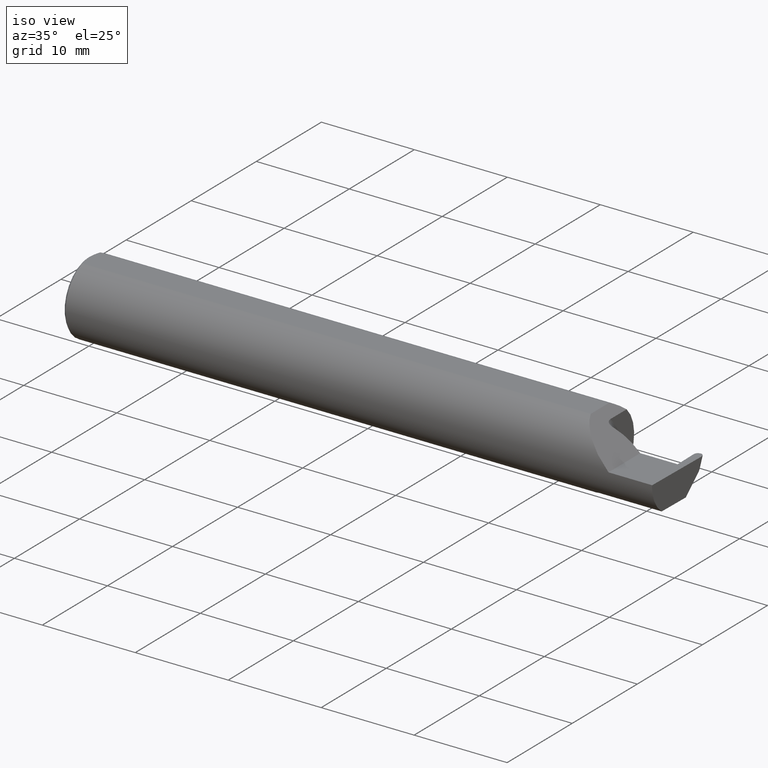
[diagram: clean part render]
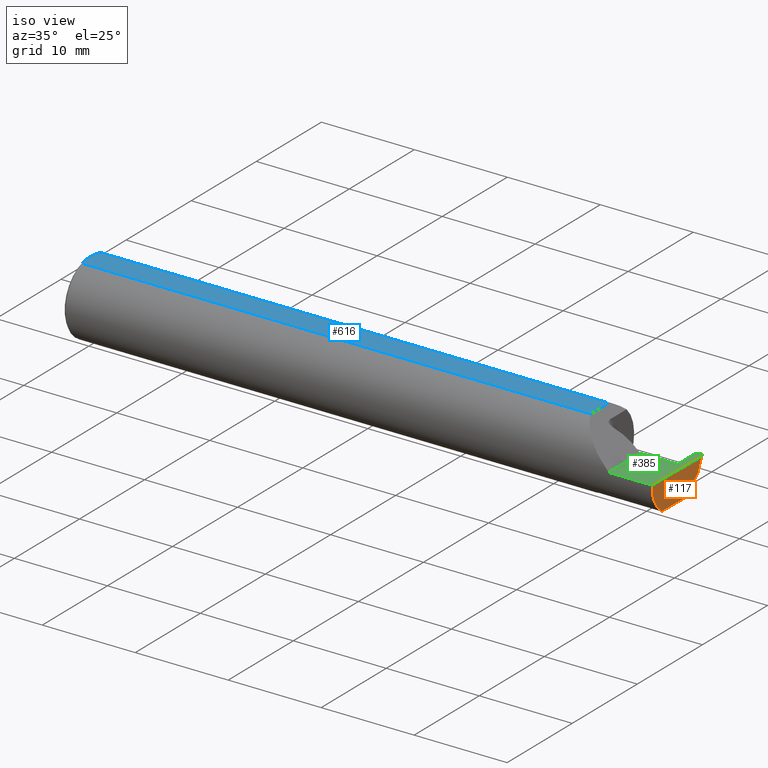
[diagram: same view with three faces highlighted in distinct colors, each labeled with its STEP entity id]
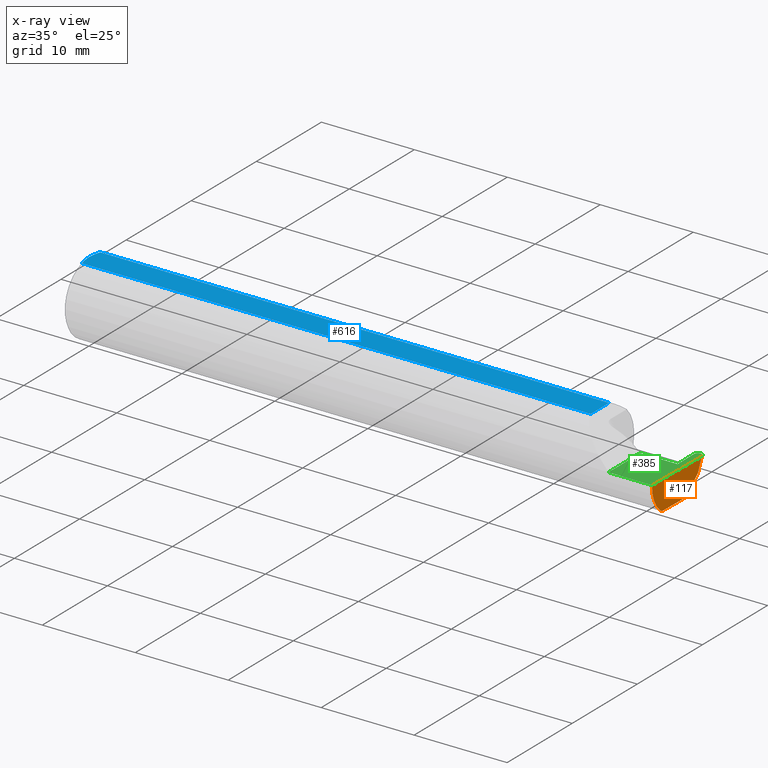
[diagram: x-ray of the same camera — body ghosted, the three highlighted faces saturated]
A machine part, iso view with three faces highlighted in distinct colors.
The next image is the same camera in x-ray (body ghosted, the three faces saturated) — at least one of them is partly hidden behind the body in this view.
Their STEP definitions:

[orange] entity #117 — the highlighted planar face has unit normal (-0.9992, 0.0174, 0.0349).
#11 = CARTESIAN_POINT ( 'NONE',  ( 2.499993570548677990, 0.1361256504244730825, 0.0002463248043608053605 ) ) ;
#18 = CARTESIAN_POINT ( 'NONE',  ( 2.494884149684813757, -0.1560999999999999888, 0.000000000000000000 ) ) ;
#20 = CARTESIAN_POINT ( 'NONE',  ( 2.494102364510032643, 0.04922584398802135747, -0.1250000000000000278 ) ) ;
#24 = VECTOR ( 'NONE', #497, 39.37007874015748854 ) ;
#55 = VERTEX_POINT ( 'NONE', #389 ) ;
#69 = CARTESIAN_POINT ( 'NONE',  ( 2.497599438174871622, 0.1159879026479704034, -0.05823794134005024631 ) ) ;
#73 = VECTOR ( 'NONE', #243, 39.37007874015748854 ) ;
#82 = DIRECTION ( 'NONE',  ( -0.9992386149554827179, 0.01744177490282265708, 0.03489949670250104552 ) ) ;
#85 = EDGE_CURVE ( 'NONE', #542, #630, #129, .T. ) ;
#105 = LINE ( 'NONE', #11, #260 ) ;
#117 = ADVANCED_FACE ( 'NONE', ( #500 ), #674, .F. ) ;
#129 = LINE ( 'NONE', #343, #24 ) ;
#159 = CARTESIAN_POINT ( 'NONE',  ( 2.494884149684813757, -0.1560999999999999888, 0.000000000000000000 ) ) ;
#166 = EDGE_LOOP ( 'NONE', ( #314, #347, #490, #683, #178, #612 ) ) ;
#172 = DIRECTION ( 'NONE',  ( -0.01745240643727600724, -0.9998476951563914916, 0.000000000000000000 ) ) ;
#178 = ORIENTED_EDGE ( 'NONE', *, *, #381, .T. ) ;
#212 = CARTESIAN_POINT ( 'NONE',  ( 2.491661639235123182, -0.09060321336276788706, -0.1250000000000001110 ) ) ;
#218 =( BOUNDED_CURVE ( )  B_SPLINE_CURVE ( 3, ( #401, #624, #451, #18 ),
 .UNSPECIFIED., .F., .F. ) 
 B_SPLINE_CURVE_WITH_KNOTS ( ( 4, 4 ),
 ( 0.1796232990704061949, 1.107331509589571494 ),
 .UNSPECIFIED. ) 
 CURVE ( )  GEOMETRIC_REPRESENTATION_ITEM ( )  RATIONAL_B_SPLINE_CURVE ( ( 1.000000000000000000, 0.9295565493311497285, 0.9295565493311497285, 1.000000000000000000 ) ) 
 REPRESENTATION_ITEM ( '' )  );
#221 = EDGE_CURVE ( 'NONE', #333, #383, #218, .T. ) ;
#239 = DIRECTION ( 'NONE',  ( 0.03490480639812536257, 0.000000000000000000, 0.9993906415863165194 ) ) ;
#243 = DIRECTION ( 'NONE',  ( -0.01745240643727600377, -0.9998476951563912696, 0.000000000000000000 ) ) ;
#244 = VERTEX_POINT ( 'NONE', #356 ) ;
#250 = VECTOR ( 'NONE', #172, 39.37007874015747433 ) ;
#260 = VECTOR ( 'NONE', #325, 39.37007874015748143 ) ;
#272 = CARTESIAN_POINT ( 'NONE',  ( 2.491636351762904766, -0.09210618219364741233, -0.1249728871357008164 ) ) ;
#277 = LINE ( 'NONE', #488, #250 ) ;
#314 = ORIENTED_EDGE ( 'NONE', *, *, #85, .F. ) ;
#325 = DIRECTION ( 'NONE',  ( 0.03867711768363006619, 0.3253245514560481610, 0.9448111011136606230 ) ) ;
#333 = VERTEX_POINT ( 'NONE', #576 ) ;
#343 = CARTESIAN_POINT ( 'NONE',  ( 2.495602440342458372, 0.07786354519681681907, -0.09636229879120425390 ) ) ;
#347 = ORIENTED_EDGE ( 'NONE', *, *, #419, .T. ) ;
#356 = CARTESIAN_POINT ( 'NONE',  ( 2.499983486910334118, 0.1360408339924935039, 0.000000000000000000 ) ) ;
#371 = CARTESIAN_POINT ( 'NONE',  ( 2.491612023732480807, -0.09360841750841733533, -0.1249186702281520900 ) ) ;
#381 = EDGE_CURVE ( 'NONE', #333, #55, #571, .T. ) ;
#383 = VERTEX_POINT ( 'NONE', #159 ) ;
#389 = CARTESIAN_POINT ( 'NONE',  ( 2.491687877921971328, -0.08909999999999938802, -0.1250000000000000278 ) ) ;
#401 = CARTESIAN_POINT ( 'NONE',  ( 2.491612023732480807, -0.09360841750841733533, -0.1249186702281520900 ) ) ;
#412 = AXIS2_PLACEMENT_3D ( 'NONE', #679, #82, #239 ) ;
#419 = EDGE_CURVE ( 'NONE', #542, #244, #105, .T. ) ;
#451 = CARTESIAN_POINT ( 'NONE',  ( 2.493134786043259332, -0.1561000000000000165, -0.05008759057876779885 ) ) ;
#477 = CARTESIAN_POINT ( 'NONE',  ( 2.491687877921971328, -0.08909999999999938802, -0.1250000000000000278 ) ) ;
#488 = CARTESIAN_POINT ( 'NONE',  ( 2.499997446333625195, 0.1368405688172235068, 0.000000000000000000 ) ) ;
#489 = EDGE_CURVE ( 'NONE', #244, #383, #277, .T. ) ;
#490 = ORIENTED_EDGE ( 'NONE', *, *, #489, .T. ) ;
#497 = DIRECTION ( 'NONE',  ( -0.03701368837992413674, -0.7066222423871549863, -0.7066222423871629799 ) ) ;
#500 = FACE_OUTER_BOUND ( 'NONE', #166, .T. ) ;
#542 = VERTEX_POINT ( 'NONE', #69 ) ;
#559 = LINE ( 'NONE', #564, #73 ) ;
#564 = CARTESIAN_POINT ( 'NONE',  ( 2.491748186259158171, -0.08564493767655903533, -0.1250000000000000278 ) ) ;
#571 =( BOUNDED_CURVE ( )  B_SPLINE_CURVE ( 3, ( #371, #272, #212, #477 ),
 .UNSPECIFIED., .F., .F. ) 
 B_SPLINE_CURVE_WITH_KNOTS ( ( 4, 4 ),
 ( 0.4273896528388683724, 0.4634648172053348336 ),
 .UNSPECIFIED. ) 
 CURVE ( )  GEOMETRIC_REPRESENTATION_ITEM ( )  RATIONAL_B_SPLINE_CURVE ( ( 1.000000000000000000, 0.9998915514833921492, 0.9998915514833921492, 1.000000000000000000 ) ) 
 REPRESENTATION_ITEM ( '' )  );
#576 = CARTESIAN_POINT ( 'NONE',  ( 2.491612023732480807, -0.09360841750841733533, -0.1249186702281520900 ) ) ;
#612 = ORIENTED_EDGE ( 'NONE', *, *, #640, .F. ) ;
#624 = CARTESIAN_POINT ( 'NONE',  ( 2.491961421548583910, -0.1336908980339253650, -0.09488266708345018119 ) ) ;
#630 = VERTEX_POINT ( 'NONE', #20 ) ;
#640 = EDGE_CURVE ( 'NONE', #630, #55, #559, .T. ) ;
#674 = PLANE ( 'NONE',  #412 ) ;
#679 = CARTESIAN_POINT ( 'NONE',  ( 2.499997446333625195, 0.1368405688172235068, 0.000000000000000000 ) ) ;
#683 = ORIENTED_EDGE ( 'NONE', *, *, #221, .F. ) ;

[blue] entity #616 — the highlighted planar face has unit normal (0, 0, 1).
#21 = ORIENTED_EDGE ( 'NONE', *, *, #645, .F. ) ;
#33 = CARTESIAN_POINT ( 'NONE',  ( 0.006876379561362894709, 0.04610291843171884091, 0.1460999999999998689 ) ) ;
#40 = ORIENTED_EDGE ( 'NONE', *, *, #671, .T. ) ;
#48 = CARTESIAN_POINT ( 'NONE',  ( 2.163899999999998602, -0.05497272050753934658, 0.1460999999999998411 ) ) ;
#78 = CARTESIAN_POINT ( 'NONE',  ( 0.000000000000000000, 0.000000000000000000, 0.1460999999999998689 ) ) ;
#83 = CARTESIAN_POINT ( 'NONE',  ( 0.0009113193687670144904, -0.01867274705588957071, 0.1460999999999998411 ) ) ;
#98 = CARTESIAN_POINT ( 'NONE',  ( 0.01000000000000013205, -0.05497272050753933964, 0.1460999999999998689 ) ) ;
#121 = ORIENTED_EDGE ( 'NONE', *, *, #231, .T. ) ;
#127 = CARTESIAN_POINT ( 'NONE',  ( -6.265209250606362652E-17, 0.009396510398413125686, 0.1460999999999998689 ) ) ;
#130 = AXIS2_PLACEMENT_3D ( 'NONE', #291, #619, #136 ) ;
#136 = DIRECTION ( 'NONE',  ( 1.000000000000000000, 0.000000000000000000, -0.000000000000000000 ) ) ;
#167 = EDGE_CURVE ( 'NONE', #604, #234, #364, .T. ) ;
#182 = CARTESIAN_POINT ( 'NONE',  ( 0.0009290501461040111091, 0.01879395969143608097, 0.1460999999999998689 ) ) ;
#186 = VECTOR ( 'NONE', #472, 39.37007874015748143 ) ;
#192 = CARTESIAN_POINT ( 'NONE',  ( 2.163899999999998602, 0.05497272050753934658, 0.1460999999999998411 ) ) ;
#198 = CARTESIAN_POINT ( 'NONE',  ( 0.000000000000000000, 0.000000000000000000, 0.1460999999999998689 ) ) ;
#203 = DIRECTION ( 'NONE',  ( 0.000000000000000000, 1.000000000000000000, 0.000000000000000000 ) ) ;
#231 = EDGE_CURVE ( 'NONE', #286, #262, #313, .T. ) ;
#234 = VERTEX_POINT ( 'NONE', #567 ) ;
#242 = VECTOR ( 'NONE', #203, 39.37007874015748143 ) ;
#262 = VERTEX_POINT ( 'NONE', #48 ) ;
#265 = LINE ( 'NONE', #643, #242 ) ;
#269 = EDGE_CURVE ( 'NONE', #262, #627, #265, .T. ) ;
#286 = VERTEX_POINT ( 'NONE', #98 ) ;
#291 = CARTESIAN_POINT ( 'NONE',  ( 2.814752029381861309, 0.1560999999999999888, 0.1460999999999998689 ) ) ;
#299 = CARTESIAN_POINT ( 'NONE',  ( -6.292721147515215909E-17, -0.009387766318748835132, 0.1460999999999998689 ) ) ;
#303 = ORIENTED_EDGE ( 'NONE', *, *, #167, .F. ) ;
#310 = LINE ( 'NONE', #579, #186 ) ;
#313 = LINE ( 'NONE', #668, #532 ) ;
#341 = DIRECTION ( 'NONE',  ( 1.000000000000000000, 0.000000000000000000, 0.000000000000000000 ) ) ;
#346 = CARTESIAN_POINT ( 'NONE',  ( 0.006903212852521220001, -0.04617911398309930415, 0.1460999999999998689 ) ) ;
#364 = B_SPLINE_CURVE_WITH_KNOTS ( 'NONE', 3,
 ( #78, #127, #182, #621, #33, #446 ),
 .UNSPECIFIED., .F., .F.,
 ( 4, 2, 4 ),
 ( 0.002914391749015463051, 0.003623333355014857204, 0.004332274961014251358 ),
 .UNSPECIFIED. ) ;
#390 = CARTESIAN_POINT ( 'NONE',  ( 0.01000000000000013205, -0.05497272050753933964, 0.1460999999999998689 ) ) ;
#417 = B_SPLINE_CURVE_WITH_KNOTS ( 'NONE', 3,
 ( #390, #346, #498, #83, #299, #501 ),
 .UNSPECIFIED., .F., .F.,
 ( 4, 2, 4 ),
 ( 0.001497827971916939694, 0.002206109860466201264, 0.002914391749015463051 ),
 .UNSPECIFIED. ) ;
#446 = CARTESIAN_POINT ( 'NONE',  ( 0.01000000000000013205, 0.05497272050753933964, 0.1460999999999998689 ) ) ;
#472 = DIRECTION ( 'NONE',  ( -1.000000000000000000, -0.000000000000000000, -0.000000000000000000 ) ) ;
#492 = EDGE_LOOP ( 'NONE', ( #121, #547, #40, #303, #21 ) ) ;
#498 = CARTESIAN_POINT ( 'NONE',  ( 0.004356241145161886263, -0.03705973501792376307, 0.1460999999999998689 ) ) ;
#501 = CARTESIAN_POINT ( 'NONE',  ( 0.000000000000000000, 0.000000000000000000, 0.1460999999999998689 ) ) ;
#532 = VECTOR ( 'NONE', #341, 39.37007874015748143 ) ;
#547 = ORIENTED_EDGE ( 'NONE', *, *, #269, .T. ) ;
#567 = CARTESIAN_POINT ( 'NONE',  ( 0.01000000000000013205, 0.05497272050753933964, 0.1460999999999998689 ) ) ;
#579 = CARTESIAN_POINT ( 'NONE',  ( 0.000000000000000000, 0.05497272050753933964, 0.1460999999999998689 ) ) ;
#604 = VERTEX_POINT ( 'NONE', #198 ) ;
#608 = FACE_OUTER_BOUND ( 'NONE', #492, .T. ) ;
#616 = ADVANCED_FACE ( 'NONE', ( #608 ), #682, .T. ) ;
#619 = DIRECTION ( 'NONE',  ( 0.000000000000000000, 0.000000000000000000, 1.000000000000000000 ) ) ;
#621 = CARTESIAN_POINT ( 'NONE',  ( 0.004370115738487063105, 0.03710696786819756010, 0.1460999999999998411 ) ) ;
#627 = VERTEX_POINT ( 'NONE', #192 ) ;
#643 = CARTESIAN_POINT ( 'NONE',  ( 2.163899999999998602, -0.2500000000000000555, 0.1460999999999998411 ) ) ;
#645 = EDGE_CURVE ( 'NONE', #286, #604, #417, .T. ) ;
#668 = CARTESIAN_POINT ( 'NONE',  ( 0.000000000000000000, -0.05497272050753933964, 0.1460999999999998689 ) ) ;
#671 = EDGE_CURVE ( 'NONE', #627, #234, #310, .T. ) ;
#682 = PLANE ( 'NONE',  #130 ) ;

[green] entity #385 — the highlighted planar face has unit normal (-0, 0, -1).
#7 = VECTOR ( 'NONE', #432, 39.37007874015748143 ) ;
#12 = ORIENTED_EDGE ( 'NONE', *, *, #489, .F. ) ;
#38 = DIRECTION ( 'NONE',  ( -1.224646799147353947E-16, 0.000000000000000000, -1.000000000000000000 ) ) ;
#54 = CARTESIAN_POINT ( 'NONE',  ( 2.310000000000000053, 0.03589999999999995278, 2.326828918379970872E-17 ) ) ;
#59 = VECTOR ( 'NONE', #647, 39.37007874015748143 ) ;
#64 = EDGE_CURVE ( 'NONE', #499, #238, #354, .T. ) ;
#72 = CARTESIAN_POINT ( 'NONE',  ( 2.473181517275717223, 0.1538999999999999257, 1.831248456795955123E-17 ) ) ;
#100 = EDGE_CURVE ( 'NONE', #244, #150, #478, .T. ) ;
#126 = CARTESIAN_POINT ( 'NONE',  ( 2.466300478715367284, 0.1464913464970357959, 1.915516875273380729E-17 ) ) ;
#138 = CARTESIAN_POINT ( 'NONE',  ( 2.468230857848970228, 0.03589999999999995278, 0.000000000000000000 ) ) ;
#140 = VERTEX_POINT ( 'NONE', #138 ) ;
#142 = CARTESIAN_POINT ( 'NONE',  ( 2.483396179931517178, 0.1539000000000000090, 0.000000000000000000 ) ) ;
#150 = VERTEX_POINT ( 'NONE', #142 ) ;
#152 = DIRECTION ( 'NONE',  ( -0.01745240643727519192, 0.9998476951563914916, -0.000000000000000000 ) ) ;
#157 = CARTESIAN_POINT ( 'NONE',  ( 3.749399456654646757E-32, -0.1560999999999999333, 3.061616997868383634E-16 ) ) ;
#159 = CARTESIAN_POINT ( 'NONE',  ( 2.494884149684813757, -0.1560999999999999888, 0.000000000000000000 ) ) ;
#160 = LINE ( 'NONE', #698, #519 ) ;
#172 = DIRECTION ( 'NONE',  ( -0.01745240643727600724, -0.9998476951563914916, 0.000000000000000000 ) ) ;
#183 = CARTESIAN_POINT ( 'NONE',  ( 2.493284862724282736, 0.1538999999999999257, -1.238434607557906304E-18 ) ) ;
#196 =( BOUNDED_CURVE ( )  B_SPLINE_CURVE ( 3, ( #253, #72, #126, #339 ),
 .UNSPECIFIED., .F., .F. ) 
 B_SPLINE_CURVE_WITH_KNOTS ( ( 4, 4 ),
 ( 6.171327673818501225, 7.747253380535273237 ),
 .UNSPECIFIED. ) 
 CURVE ( )  GEOMETRIC_REPRESENTATION_ITEM ( )  RATIONAL_B_SPLINE_CURVE ( ( 1.000000000000000000, 0.8035272986452591804, 0.8035272986452591804, 1.000000000000000000 ) ) 
 REPRESENTATION_ITEM ( '' )  );
#209 = LINE ( 'NONE', #157, #638 ) ;
#233 = CARTESIAN_POINT ( 'NONE',  ( 2.468230857848970228, 0.03589999999999995278, 0.000000000000000000 ) ) ;
#238 = VERTEX_POINT ( 'NONE', #687 ) ;
#244 = VERTEX_POINT ( 'NONE', #356 ) ;
#247 = CARTESIAN_POINT ( 'NONE',  ( 2.499983486910334118, 0.1360408339924935039, 0.000000000000000000 ) ) ;
#250 = VECTOR ( 'NONE', #172, 39.37007874015747433 ) ;
#253 = CARTESIAN_POINT ( 'NONE',  ( 2.483070200068483224, 0.1539000000000000090, 0.000000000000000000 ) ) ;
#259 = DIRECTION ( 'NONE',  ( -1.000000000000000000, 0.000000000000000000, 1.224646799147353947E-16 ) ) ;
#277 = LINE ( 'NONE', #488, #250 ) ;
#279 = LINE ( 'NONE', #233, #7 ) ;
#281 = AXIS2_PLACEMENT_3D ( 'NONE', #512, #38, #259 ) ;
#300 = VERTEX_POINT ( 'NONE', #318 ) ;
#315 = FACE_OUTER_BOUND ( 'NONE', #433, .T. ) ;
#318 = CARTESIAN_POINT ( 'NONE',  ( 2.310000000000000053, -0.1560999999999999888, 2.326828918379970872E-17 ) ) ;
#339 = CARTESIAN_POINT ( 'NONE',  ( 2.466482893089666284, 0.1360408339924935039, 0.000000000000000000 ) ) ;
#342 = EDGE_CURVE ( 'NONE', #140, #404, #160, .T. ) ;
#350 = CARTESIAN_POINT ( 'NONE',  ( 2.483396179931517178, 0.1539000000000000090, 0.000000000000000000 ) ) ;
#354 = LINE ( 'NONE', #558, #548 ) ;
#356 = CARTESIAN_POINT ( 'NONE',  ( 2.499983486910334118, 0.1360408339924935039, 0.000000000000000000 ) ) ;
#372 = EDGE_CURVE ( 'NONE', #383, #300, #209, .T. ) ;
#373 = DIRECTION ( 'NONE',  ( -1.000000000000000000, -0.000000000000000000, -0.000000000000000000 ) ) ;
#383 = VERTEX_POINT ( 'NONE', #159 ) ;
#385 = ADVANCED_FACE ( 'NONE', ( #315 ), #588, .F. ) ;
#404 = VERTEX_POINT ( 'NONE', #466 ) ;
#428 = CARTESIAN_POINT ( 'NONE',  ( 2.483070200068483224, 0.1539000000000000090, 0.000000000000000000 ) ) ;
#432 = DIRECTION ( 'NONE',  ( 1.000000000000000000, -0.000000000000000000, -0.000000000000000000 ) ) ;
#433 = EDGE_LOOP ( 'NONE', ( #677, #593, #620, #494, #445, #673, #441, #12, #533 ) ) ;
#436 = EDGE_CURVE ( 'NONE', #450, #150, #661, .T. ) ;
#441 = ORIENTED_EDGE ( 'NONE', *, *, #372, .F. ) ;
#442 = EDGE_CURVE ( 'NONE', #238, #140, #279, .T. ) ;
#445 = ORIENTED_EDGE ( 'NONE', *, *, #64, .F. ) ;
#450 = VERTEX_POINT ( 'NONE', #428 ) ;
#466 = CARTESIAN_POINT ( 'NONE',  ( 2.466482893089666284, 0.1360408339924935039, 0.000000000000000000 ) ) ;
#478 =( BOUNDED_CURVE ( )  B_SPLINE_CURVE ( 3, ( #247, #675, #183, #350 ),
 .UNSPECIFIED., .F., .T. ) 
 B_SPLINE_CURVE_WITH_KNOTS ( ( 4, 4 ),
 ( 1.677524580234105001, 3.253450286950877679 ),
 .UNSPECIFIED. ) 
 CURVE ( )  GEOMETRIC_REPRESENTATION_ITEM ( )  RATIONAL_B_SPLINE_CURVE ( ( 1.000000000000000000, 0.8035272986452588473, 0.8035272986452588473, 1.000000000000000000 ) ) 
 REPRESENTATION_ITEM ( '' )  );
#488 = CARTESIAN_POINT ( 'NONE',  ( 2.499997446333625195, 0.1368405688172235068, 0.000000000000000000 ) ) ;
#489 = EDGE_CURVE ( 'NONE', #244, #383, #277, .T. ) ;
#494 = ORIENTED_EDGE ( 'NONE', *, *, #442, .F. ) ;
#499 = VERTEX_POINT ( 'NONE', #54 ) ;
#510 = DIRECTION ( 'NONE',  ( -0.000000000000000000, 1.000000000000000000, -0.000000000000000000 ) ) ;
#512 = CARTESIAN_POINT ( 'NONE',  ( 2.500000000000000000, -0.2500000000000000555, 0.000000000000000000 ) ) ;
#519 = VECTOR ( 'NONE', #152, 39.37007874015747433 ) ;
#529 = CARTESIAN_POINT ( 'NONE',  ( -3.937007874019685528E-05, 0.1539000000000000090, 0.000000000000000000 ) ) ;
#533 = ORIENTED_EDGE ( 'NONE', *, *, #100, .T. ) ;
#548 = VECTOR ( 'NONE', #553, 39.37007874015748143 ) ;
#552 = VECTOR ( 'NONE', #510, 39.37007874015748143 ) ;
#553 = DIRECTION ( 'NONE',  ( 1.000000000000000000, 1.922274392784743754E-16, 0.000000000000000000 ) ) ;
#558 = CARTESIAN_POINT ( 'NONE',  ( 2.200000000000000178, 0.03589999999999998748, 3.673940397442061347E-17 ) ) ;
#563 = EDGE_CURVE ( 'NONE', #450, #404, #196, .T. ) ;
#568 = CARTESIAN_POINT ( 'NONE',  ( 2.310000000000000053, -0.2500000000000000555, 2.326828918379970872E-17 ) ) ;
#588 = PLANE ( 'NONE',  #281 ) ;
#593 = ORIENTED_EDGE ( 'NONE', *, *, #563, .T. ) ;
#620 = ORIENTED_EDGE ( 'NONE', *, *, #342, .F. ) ;
#625 = LINE ( 'NONE', #568, #552 ) ;
#638 = VECTOR ( 'NONE', #373, 39.37007874015748143 ) ;
#647 = DIRECTION ( 'NONE',  ( 1.000000000000000000, -0.000000000000000000, -0.000000000000000000 ) ) ;
#661 = LINE ( 'NONE', #529, #59 ) ;
#664 = EDGE_CURVE ( 'NONE', #300, #499, #625, .T. ) ;
#673 = ORIENTED_EDGE ( 'NONE', *, *, #664, .F. ) ;
#675 = CARTESIAN_POINT ( 'NONE',  ( 2.500165901284633563, 0.1464913464970357959, -2.081118792332164104E-18 ) ) ;
#677 = ORIENTED_EDGE ( 'NONE', *, *, #436, .F. ) ;
#687 = CARTESIAN_POINT ( 'NONE',  ( 2.461171160187441309, 0.03589999999999995278, 0.000000000000000000 ) ) ;
#698 = CARTESIAN_POINT ( 'NONE',  ( 2.466468933666375207, 0.1368405688172235068, 0.000000000000000000 ) ) ;